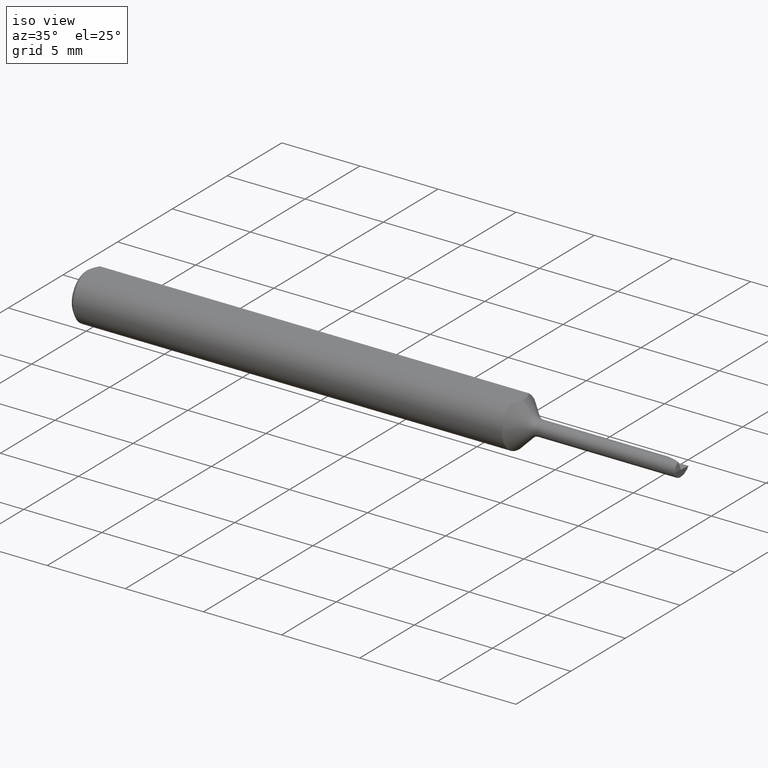
[diagram: clean part render]
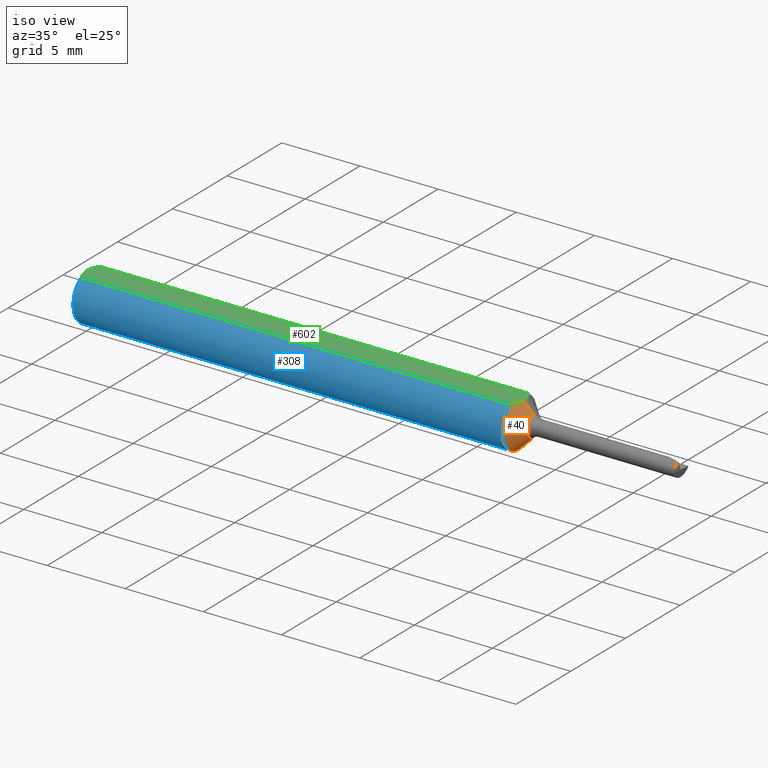
[diagram: same view with three faces highlighted in distinct colors, each labeled with its STEP entity id]
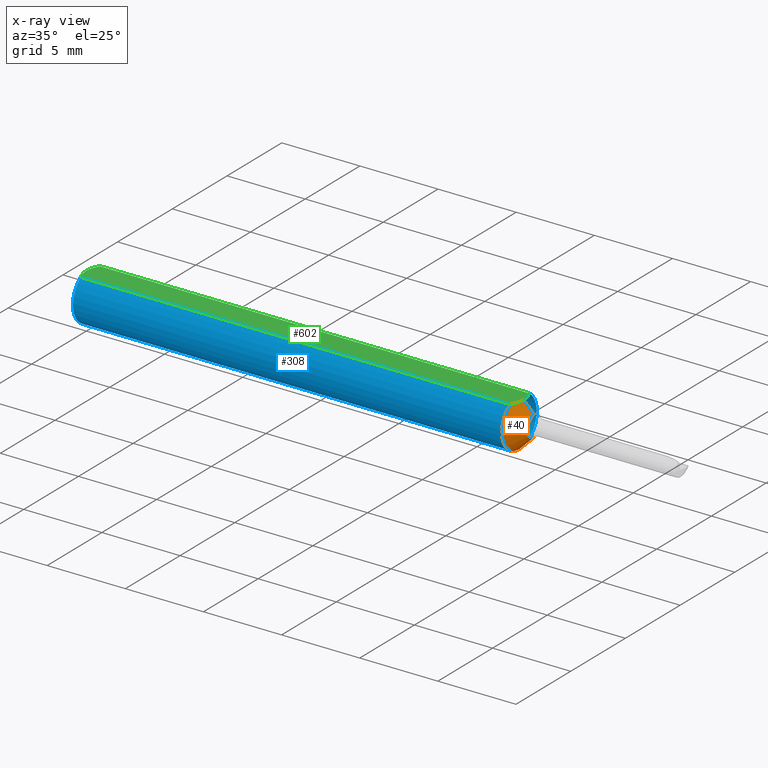
[diagram: x-ray of the same camera — body ghosted, the three highlighted faces saturated]
A machine part, iso view with three faces highlighted in distinct colors.
The next image is the same camera in x-ray (body ghosted, the three faces saturated) — at least one of them is partly hidden behind the body in this view.
Their STEP definitions:

[orange] entity #40 — the highlighted conical surface has half-angle 45 deg.
#24 = LINE ( 'NONE', #328, #480 ) ;
#40 = ADVANCED_FACE ( 'NONE', ( #623 ), #546, .T. ) ;
#49 = VECTOR ( 'NONE', #182, 39.37007874015748143 ) ;
#66 = CARTESIAN_POINT ( 'NONE',  ( 1.101150000000000295, -1.477730522838633192E-21, 0.05235000000000001458 ) ) ;
#84 = VERTEX_POINT ( 'NONE', #219 ) ;
#90 = B_SPLINE_CURVE_WITH_KNOTS ( 'NONE', 3,
 ( #66, #626, #568, #181, #276, #472 ),
 .UNSPECIFIED., .F., .F.,
 ( 4, 2, 4 ),
 ( 0.002916663230282787959, 0.003365861382119245907, 0.003815059533955703856 ),
 .UNSPECIFIED. ) ;
#104 = AXIS2_PLACEMENT_3D ( 'NONE', #203, #339, #149 ) ;
#134 = ORIENTED_EDGE ( 'NONE', *, *, #231, .F. ) ;
#142 = ORIENTED_EDGE ( 'NONE', *, *, #299, .T. ) ;
#147 = VERTEX_POINT ( 'NONE', #424 ) ;
#149 = DIRECTION ( 'NONE',  ( 0.000000000000000000, 0.000000000000000000, 1.000000000000000000 ) ) ;
#154 = EDGE_CURVE ( 'NONE', #84, #356, #90, .T. ) ;
#159 = DIRECTION ( 'NONE',  ( -1.000000000000000000, -0.000000000000000000, -0.000000000000000000 ) ) ;
#181 = CARTESIAN_POINT ( 'NONE',  ( 1.096482645487524055, -0.02321992653401847018, 0.05235000000000001458 ) ) ;
#182 = DIRECTION ( 'NONE',  ( -0.7071067811865477948, 0.000000000000000000, 0.7071067811865472397 ) ) ;
#198 = CARTESIAN_POINT ( 'NONE',  ( 1.091150000000000286, 0.000000000000000000, 0.000000000000000000 ) ) ;
#203 = CARTESIAN_POINT ( 'NONE',  ( 1.127677669529663751, 0.000000000000000000, 0.000000000000000000 ) ) ;
#218 = CARTESIAN_POINT ( 'NONE',  ( 1.091150000000000286, -0.03386738844375220686, 0.05235000000000000070 ) ) ;
#219 = CARTESIAN_POINT ( 'NONE',  ( 1.101150000000000295, -1.477730522838633192E-21, 0.05235000000000001458 ) ) ;
#224 = LINE ( 'NONE', #415, #49 ) ;
#225 = DIRECTION ( 'NONE',  ( 0.000000000000000000, 0.000000000000000000, 1.000000000000000000 ) ) ;
#231 = EDGE_CURVE ( 'NONE', #539, #356, #240, .T. ) ;
#240 = CIRCLE ( 'NONE', #380, 0.06235000000000000264 ) ;
#273 = ORIENTED_EDGE ( 'NONE', *, *, #593, .F. ) ;
#276 = CARTESIAN_POINT ( 'NONE',  ( 1.094001488371463271, -0.02861778674340262688, 0.05235000000000002152 ) ) ;
#277 = CARTESIAN_POINT ( 'NONE',  ( 1.091150000000000286, 7.635672792683746671E-18, -0.06235000000000000264 ) ) ;
#284 = DIRECTION ( 'NONE',  ( -0.7071067811865477948, 8.659560562354929160E-17, -0.7071067811865472397 ) ) ;
#299 = EDGE_CURVE ( 'NONE', #147, #588, #402, .T. ) ;
#328 = CARTESIAN_POINT ( 'NONE',  ( 1.127677669529663751, 3.162323435702269328E-18, -0.02582233047033644438 ) ) ;
#339 = DIRECTION ( 'NONE',  ( -1.000000000000000000, -0.000000000000000000, -0.000000000000000000 ) ) ;
#344 = AXIS2_PLACEMENT_3D ( 'NONE', #368, #621, #225 ) ;
#356 = VERTEX_POINT ( 'NONE', #218 ) ;
#368 = CARTESIAN_POINT ( 'NONE',  ( 1.127677669529663751, 0.000000000000000000, 0.000000000000000000 ) ) ;
#380 = AXIS2_PLACEMENT_3D ( 'NONE', #198, #159, #590 ) ;
#383 = ORIENTED_EDGE ( 'NONE', *, *, #477, .T. ) ;
#402 = CIRCLE ( 'NONE', #104, 0.02582233047033644438 ) ;
#415 = CARTESIAN_POINT ( 'NONE',  ( 1.127677669529663751, 0.000000000000000000, 0.02582233047033644438 ) ) ;
#424 = CARTESIAN_POINT ( 'NONE',  ( 1.127677669529663751, 3.162323435702262010E-18, -0.02582233047033638887 ) ) ;
#454 = ORIENTED_EDGE ( 'NONE', *, *, #154, .T. ) ;
#472 = CARTESIAN_POINT ( 'NONE',  ( 1.091150000000000286, -0.03386738844375220686, 0.05235000000000000070 ) ) ;
#477 = EDGE_CURVE ( 'NONE', #588, #84, #224, .T. ) ;
#478 = EDGE_LOOP ( 'NONE', ( #273, #142, #383, #454, #134 ) ) ;
#480 = VECTOR ( 'NONE', #284, 39.37007874015748143 ) ;
#539 = VERTEX_POINT ( 'NONE', #277 ) ;
#546 = CONICAL_SURFACE ( 'NONE', #344, 0.02582233047033644438, 0.7853981633974479459 ) ;
#568 = CARTESIAN_POINT ( 'NONE',  ( 1.100078879331740422, -0.01191647624495712973, 0.05235000000000002152 ) ) ;
#588 = VERTEX_POINT ( 'NONE', #629 ) ;
#590 = DIRECTION ( 'NONE',  ( 0.000000000000000000, 0.000000000000000000, 1.000000000000000000 ) ) ;
#593 = EDGE_CURVE ( 'NONE', #147, #539, #24, .T. ) ;
#621 = DIRECTION ( 'NONE',  ( -1.000000000000000000, -0.000000000000000000, -0.000000000000000000 ) ) ;
#623 = FACE_OUTER_BOUND ( 'NONE', #478, .T. ) ;
#626 = CARTESIAN_POINT ( 'NONE',  ( 1.101150000000000295, -0.005924734429433303230, 0.05235000000000002152 ) ) ;
#629 = CARTESIAN_POINT ( 'NONE',  ( 1.127677669529663751, 0.000000000000000000, 0.02582233047033638887 ) ) ;

[blue] entity #308 — the highlighted cylindrical surface (edge-blend (fillet) strip) has radius 1.5837 mm, axis along (-1, -0, -0).
#7 = DIRECTION ( 'NONE',  ( 1.000000000000000000, 0.000000000000000000, 0.000000000000000000 ) ) ;
#12 = VERTEX_POINT ( 'NONE', #15 ) ;
#15 = CARTESIAN_POINT ( 'NONE',  ( 1.091150000000000286, 0.03386738844375220686, 0.05235000000000000070 ) ) ;
#23 = VERTEX_POINT ( 'NONE', #612 ) ;
#42 = CARTESIAN_POINT ( 'NONE',  ( 0.000000000000000000, -0.03386738844375220686, 0.05235000000000000070 ) ) ;
#45 = DIRECTION ( 'NONE',  ( 1.000000000000000000, 0.000000000000000000, 0.000000000000000000 ) ) ;
#53 = FACE_OUTER_BOUND ( 'NONE', #82, .T. ) ;
#79 = AXIS2_PLACEMENT_3D ( 'NONE', #619, #616, #467 ) ;
#82 = EDGE_LOOP ( 'NONE', ( #167, #335, #337, #437, #492, #209 ) ) ;
#99 = LINE ( 'NONE', #42, #351 ) ;
#143 = EDGE_CURVE ( 'NONE', #23, #194, #287, .T. ) ;
#159 = DIRECTION ( 'NONE',  ( -1.000000000000000000, -0.000000000000000000, -0.000000000000000000 ) ) ;
#167 = ORIENTED_EDGE ( 'NONE', *, *, #378, .T. ) ;
#170 = CARTESIAN_POINT ( 'NONE',  ( 0.009999999999999887451, 0.000000000000000000, 0.000000000000000000 ) ) ;
#193 = LINE ( 'NONE', #386, #604 ) ;
#194 = VERTEX_POINT ( 'NONE', #390 ) ;
#198 = CARTESIAN_POINT ( 'NONE',  ( 1.091150000000000286, 0.000000000000000000, 0.000000000000000000 ) ) ;
#204 = CIRCLE ( 'NONE', #637, 0.06235000000000000264 ) ;
#207 = DIRECTION ( 'NONE',  ( 0.000000000000000000, 0.000000000000000000, 1.000000000000000000 ) ) ;
#209 = ORIENTED_EDGE ( 'NONE', *, *, #283, .T. ) ;
#218 = CARTESIAN_POINT ( 'NONE',  ( 1.091150000000000286, -0.03386738844375220686, 0.05235000000000000070 ) ) ;
#223 = EDGE_CURVE ( 'NONE', #356, #440, #99, .T. ) ;
#231 = EDGE_CURVE ( 'NONE', #539, #356, #240, .T. ) ;
#240 = CIRCLE ( 'NONE', #380, 0.06235000000000000264 ) ;
#245 = AXIS2_PLACEMENT_3D ( 'NONE', #170, #329, #361 ) ;
#257 = DIRECTION ( 'NONE',  ( -1.000000000000000000, -0.000000000000000000, -0.000000000000000000 ) ) ;
#277 = CARTESIAN_POINT ( 'NONE',  ( 1.091150000000000286, 7.635672792683746671E-18, -0.06235000000000000264 ) ) ;
#283 = EDGE_CURVE ( 'NONE', #194, #12, #193, .T. ) ;
#287 = CIRCLE ( 'NONE', #245, 0.06235000000000000264 ) ;
#308 = ADVANCED_FACE ( 'NONE', ( #53 ), #542, .T. ) ;
#329 = DIRECTION ( 'NONE',  ( 1.000000000000000000, 0.000000000000000000, 0.000000000000000000 ) ) ;
#335 = ORIENTED_EDGE ( 'NONE', *, *, #231, .T. ) ;
#337 = ORIENTED_EDGE ( 'NONE', *, *, #223, .T. ) ;
#350 = CARTESIAN_POINT ( 'NONE',  ( 0.000000000000000000, 0.000000000000000000, 0.000000000000000000 ) ) ;
#351 = VECTOR ( 'NONE', #599, 39.37007874015748143 ) ;
#356 = VERTEX_POINT ( 'NONE', #218 ) ;
#359 = CIRCLE ( 'NONE', #79, 0.06235000000000000264 ) ;
#361 = DIRECTION ( 'NONE',  ( 0.000000000000000000, 0.000000000000000000, -1.000000000000000000 ) ) ;
#378 = EDGE_CURVE ( 'NONE', #12, #539, #359, .T. ) ;
#380 = AXIS2_PLACEMENT_3D ( 'NONE', #198, #159, #590 ) ;
#386 = CARTESIAN_POINT ( 'NONE',  ( 0.000000000000000000, 0.03386738844375220686, 0.05235000000000000070 ) ) ;
#390 = CARTESIAN_POINT ( 'NONE',  ( 0.009999999999999890921, 0.03386738844375217911, 0.05235000000000001458 ) ) ;
#396 = DIRECTION ( 'NONE',  ( 0.000000000000000000, 0.000000000000000000, -1.000000000000000000 ) ) ;
#437 = ORIENTED_EDGE ( 'NONE', *, *, #631, .T. ) ;
#440 = VERTEX_POINT ( 'NONE', #456 ) ;
#456 = CARTESIAN_POINT ( 'NONE',  ( 0.01000000000000840841, -0.03386738844395137393, 0.05235000000000001458 ) ) ;
#467 = DIRECTION ( 'NONE',  ( 0.000000000000000000, 0.000000000000000000, 1.000000000000000000 ) ) ;
#492 = ORIENTED_EDGE ( 'NONE', *, *, #143, .T. ) ;
#537 = CARTESIAN_POINT ( 'NONE',  ( 0.009999999999999887451, 0.000000000000000000, 0.000000000000000000 ) ) ;
#539 = VERTEX_POINT ( 'NONE', #277 ) ;
#542 = CYLINDRICAL_SURFACE ( 'NONE', #632, 0.06235000000000000264 ) ;
#590 = DIRECTION ( 'NONE',  ( 0.000000000000000000, 0.000000000000000000, 1.000000000000000000 ) ) ;
#599 = DIRECTION ( 'NONE',  ( -1.000000000000000000, -0.000000000000000000, -0.000000000000000000 ) ) ;
#604 = VECTOR ( 'NONE', #7, 39.37007874015748143 ) ;
#612 = CARTESIAN_POINT ( 'NONE',  ( 0.009999999999999887451, 0.000000000000000000, -0.06235000000000000264 ) ) ;
#616 = DIRECTION ( 'NONE',  ( -1.000000000000000000, -0.000000000000000000, -0.000000000000000000 ) ) ;
#619 = CARTESIAN_POINT ( 'NONE',  ( 1.091150000000000286, 0.000000000000000000, 0.000000000000000000 ) ) ;
#631 = EDGE_CURVE ( 'NONE', #440, #23, #204, .T. ) ;
#632 = AXIS2_PLACEMENT_3D ( 'NONE', #350, #257, #207 ) ;
#637 = AXIS2_PLACEMENT_3D ( 'NONE', #537, #45, #396 ) ;

[green] entity #602 — the highlighted planar face has unit normal (0, 0, -1).
#7 = DIRECTION ( 'NONE',  ( 1.000000000000000000, 0.000000000000000000, 0.000000000000000000 ) ) ;
#12 = VERTEX_POINT ( 'NONE', #15 ) ;
#15 = CARTESIAN_POINT ( 'NONE',  ( 1.091150000000000286, 0.03386738844375220686, 0.05235000000000000070 ) ) ;
#26 = CARTESIAN_POINT ( 'NONE',  ( 1.091150000000000286, 0.03386738844375220686, 0.05235000000000000070 ) ) ;
#28 = CARTESIAN_POINT ( 'NONE',  ( 0.000000000000000000, 0.000000000000000000, 0.05235000000000033377 ) ) ;
#31 = CARTESIAN_POINT ( 'NONE',  ( -1.070637973615595603E-15, -0.005965286321711177862, 0.05235000000000002152 ) ) ;
#37 = CARTESIAN_POINT ( 'NONE',  ( 0.001063697276021357847, 0.01189177144351693735, 0.05235000000000001458 ) ) ;
#42 = CARTESIAN_POINT ( 'NONE',  ( 0.000000000000000000, -0.03386738844375220686, 0.05235000000000000070 ) ) ;
#43 = B_SPLINE_CURVE_WITH_KNOTS ( 'NONE', 3,
 ( #26, #625, #400, #639, #486, #296 ),
 .UNSPECIFIED., .F., .F.,
 ( 4, 2, 4 ),
 ( 0.002018861167849228706, 0.002467762199066008549, 0.002916663230282787959 ),
 .UNSPECIFIED. ) ;
#52 = CARTESIAN_POINT ( 'NONE',  ( 0.004671770759546769666, 0.02323517832780105236, 0.05235000000000002152 ) ) ;
#56 = ORIENTED_EDGE ( 'NONE', *, *, #641, .T. ) ;
#63 = ORIENTED_EDGE ( 'NONE', *, *, #223, .F. ) ;
#66 = CARTESIAN_POINT ( 'NONE',  ( 1.101150000000000295, -1.477730522838633192E-21, 0.05235000000000001458 ) ) ;
#76 = CARTESIAN_POINT ( 'NONE',  ( 0.01000000000000840841, -0.03386738844395137393, 0.05235000000000001458 ) ) ;
#84 = VERTEX_POINT ( 'NONE', #219 ) ;
#85 = CARTESIAN_POINT ( 'NONE',  ( 0.000000000000000000, 0.000000000000000000, 0.05235000000000033377 ) ) ;
#90 = B_SPLINE_CURVE_WITH_KNOTS ( 'NONE', 3,
 ( #66, #626, #568, #181, #276, #472 ),
 .UNSPECIFIED., .F., .F.,
 ( 4, 2, 4 ),
 ( 0.002916663230282787959, 0.003365861382119245907, 0.003815059533955703856 ),
 .UNSPECIFIED. ) ;
#99 = LINE ( 'NONE', #42, #351 ) ;
#148 = CARTESIAN_POINT ( 'NONE',  ( -1.099542139246802830E-15, 0.005954997531773979953, 0.05235000000000002152 ) ) ;
#154 = EDGE_CURVE ( 'NONE', #84, #356, #90, .T. ) ;
#181 = CARTESIAN_POINT ( 'NONE',  ( 1.096482645487524055, -0.02321992653401847018, 0.05235000000000001458 ) ) ;
#183 = FACE_OUTER_BOUND ( 'NONE', #315, .T. ) ;
#192 = AXIS2_PLACEMENT_3D ( 'NONE', #422, #473, #419 ) ;
#193 = LINE ( 'NONE', #386, #604 ) ;
#194 = VERTEX_POINT ( 'NONE', #390 ) ;
#205 = ORIENTED_EDGE ( 'NONE', *, *, #498, .T. ) ;
#218 = CARTESIAN_POINT ( 'NONE',  ( 1.091150000000000286, -0.03386738844375220686, 0.05235000000000000070 ) ) ;
#219 = CARTESIAN_POINT ( 'NONE',  ( 1.101150000000000295, -1.477730522838633192E-21, 0.05235000000000001458 ) ) ;
#223 = EDGE_CURVE ( 'NONE', #356, #440, #99, .T. ) ;
#227 = PLANE ( 'NONE',  #192 ) ;
#276 = CARTESIAN_POINT ( 'NONE',  ( 1.094001488371463271, -0.02861778674340262688, 0.05235000000000002152 ) ) ;
#283 = EDGE_CURVE ( 'NONE', #194, #12, #193, .T. ) ;
#296 = CARTESIAN_POINT ( 'NONE',  ( 1.101150000000000295, -1.477730522838633192E-21, 0.05235000000000001458 ) ) ;
#300 = CARTESIAN_POINT ( 'NONE',  ( 0.007185421074056205608, 0.02868573718286560742, 0.05235000000000002152 ) ) ;
#315 = EDGE_LOOP ( 'NONE', ( #595, #56, #205, #63, #352, #398 ) ) ;
#351 = VECTOR ( 'NONE', #599, 39.37007874015748143 ) ;
#352 = ORIENTED_EDGE ( 'NONE', *, *, #154, .F. ) ;
#356 = VERTEX_POINT ( 'NONE', #218 ) ;
#373 = CARTESIAN_POINT ( 'NONE',  ( 0.004679365186825695105, -0.02325953974091124477, 0.05235000000000000764 ) ) ;
#382 = CARTESIAN_POINT ( 'NONE',  ( 0.007163450771416182694, -0.02864528976632487248, 0.05235000000000001458 ) ) ;
#386 = CARTESIAN_POINT ( 'NONE',  ( 0.000000000000000000, 0.03386738844375220686, 0.05235000000000000070 ) ) ;
#390 = CARTESIAN_POINT ( 'NONE',  ( 0.009999999999999890921, 0.03386738844375217911, 0.05235000000000001458 ) ) ;
#393 = CARTESIAN_POINT ( 'NONE',  ( 0.009999999999999890921, 0.03386738844375217911, 0.05235000000000001458 ) ) ;
#398 = ORIENTED_EDGE ( 'NONE', *, *, #622, .F. ) ;
#400 = CARTESIAN_POINT ( 'NONE',  ( 1.096488788636946765, 0.02320328458619742504, 0.05235000000000002152 ) ) ;
#419 = DIRECTION ( 'NONE',  ( -1.000000000000000000, 0.000000000000000000, -0.000000000000000000 ) ) ;
#422 = CARTESIAN_POINT ( 'NONE',  ( 1.500000000000000222, 0.06235000000000000264, 0.05235000000000001458 ) ) ;
#423 = B_SPLINE_CURVE_WITH_KNOTS ( 'NONE', 3,
 ( #393, #300, #52, #37, #148, #85 ),
 .UNSPECIFIED., .F., .F.,
 ( 4, 2, 4 ),
 ( 0.0009229516234078821539, 0.001371626545108044996, 0.001820301466808207621 ),
 .UNSPECIFIED. ) ;
#439 = B_SPLINE_CURVE_WITH_KNOTS ( 'NONE', 3,
 ( #28, #31, #586, #373, #382, #76 ),
 .UNSPECIFIED., .F., .F.,
 ( 4, 2, 4 ),
 ( 0.001820301466808207621, 0.002269751589840481119, 0.002719201712872754834 ),
 .UNSPECIFIED. ) ;
#440 = VERTEX_POINT ( 'NONE', #456 ) ;
#456 = CARTESIAN_POINT ( 'NONE',  ( 0.01000000000000840841, -0.03386738844395137393, 0.05235000000000001458 ) ) ;
#472 = CARTESIAN_POINT ( 'NONE',  ( 1.091150000000000286, -0.03386738844375220686, 0.05235000000000000070 ) ) ;
#473 = DIRECTION ( 'NONE',  ( 0.000000000000000000, 0.000000000000000000, -1.000000000000000000 ) ) ;
#486 = CARTESIAN_POINT ( 'NONE',  ( 1.101150000000000295, 0.005920815533601004807, 0.05235000000000002152 ) ) ;
#498 = EDGE_CURVE ( 'NONE', #635, #440, #439, .T. ) ;
#549 = CARTESIAN_POINT ( 'NONE',  ( 0.000000000000000000, 0.000000000000000000, 0.05235000000000033377 ) ) ;
#568 = CARTESIAN_POINT ( 'NONE',  ( 1.100078879331740422, -0.01191647624495712973, 0.05235000000000002152 ) ) ;
#586 = CARTESIAN_POINT ( 'NONE',  ( 0.001055043921644571291, -0.01186408073217194367, 0.05235000000000002152 ) ) ;
#595 = ORIENTED_EDGE ( 'NONE', *, *, #283, .F. ) ;
#599 = DIRECTION ( 'NONE',  ( -1.000000000000000000, -0.000000000000000000, -0.000000000000000000 ) ) ;
#602 = ADVANCED_FACE ( 'NONE', ( #183 ), #227, .F. ) ;
#604 = VECTOR ( 'NONE', #7, 39.37007874015748143 ) ;
#622 = EDGE_CURVE ( 'NONE', #12, #84, #43, .T. ) ;
#625 = CARTESIAN_POINT ( 'NONE',  ( 1.093992034642578659, 0.02863519109676615146, 0.05235000000000002152 ) ) ;
#626 = CARTESIAN_POINT ( 'NONE',  ( 1.101150000000000295, -0.005924734429433303230, 0.05235000000000002152 ) ) ;
#635 = VERTEX_POINT ( 'NONE', #549 ) ;
#639 = CARTESIAN_POINT ( 'NONE',  ( 1.100078615661968851, 0.01191463382135335598, 0.05235000000000001458 ) ) ;
#641 = EDGE_CURVE ( 'NONE', #194, #635, #423, .T. ) ;